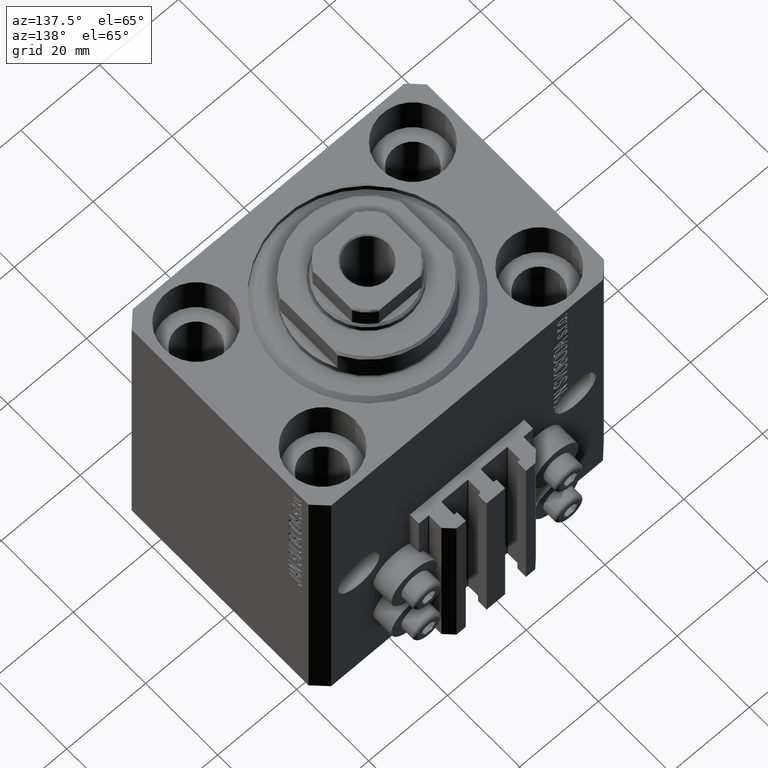
[diagram: clean part render]
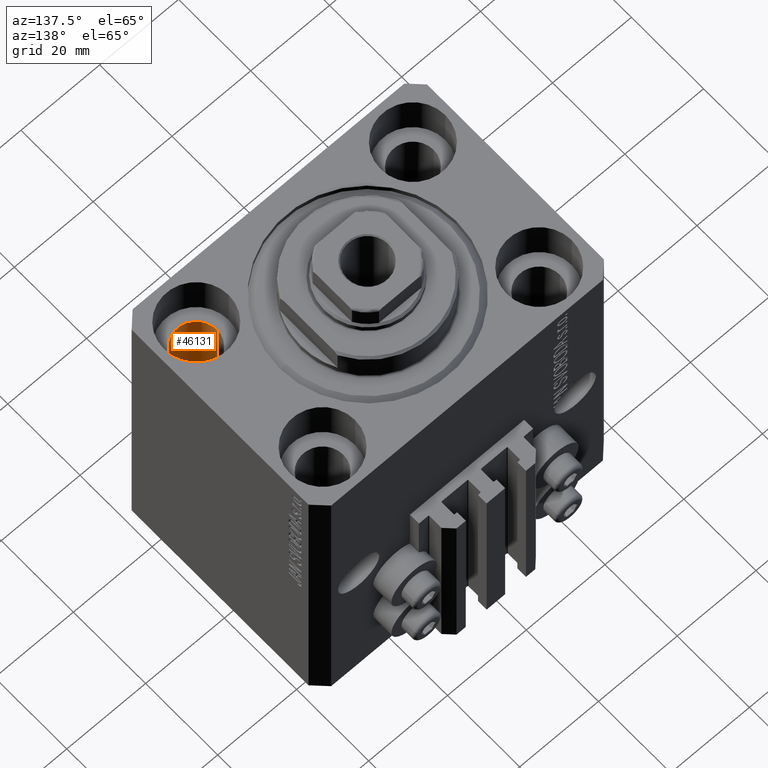
[diagram: same view with one face highlighted and labeled with its STEP entity id]
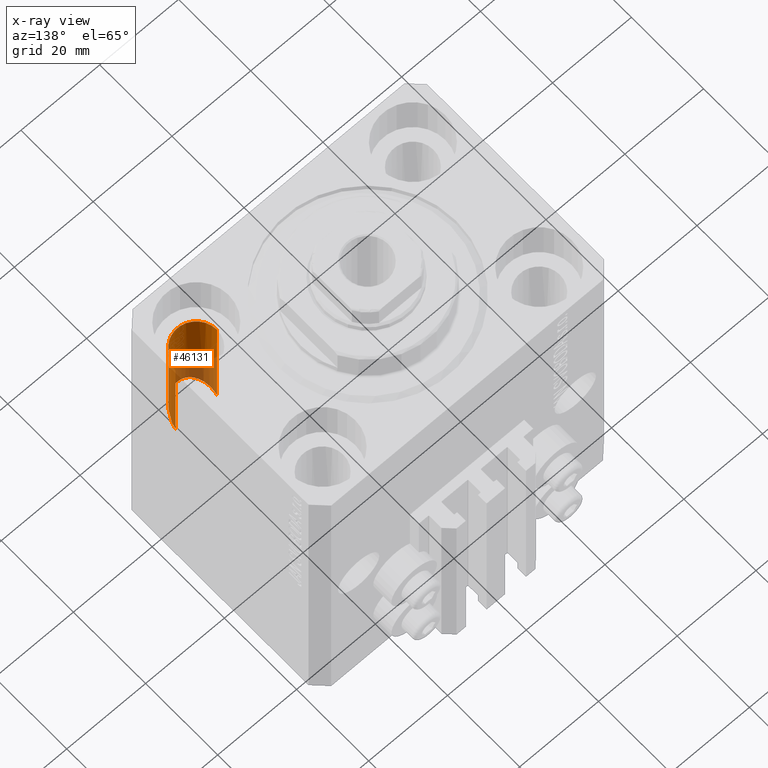
[diagram: x-ray of the same camera — body ghosted, the highlighted face saturated]
A machine part, auxiliary view. The second image highlights one B-rep face of the part: STEP entity #46131.
The next image is the same camera in x-ray: the body ghosted, the highlighted face saturated — about 44% of this face is hidden behind the body in this view.
In plain terms, the highlighted cylindrical surface (edge-blend (fillet) strip) has radius 5.25 mm, axis along (0, 0, 1).
Its self-contained STEP definition (entity closure, byte-faithful):
#450 = CARTESIAN_POINT ( 'NONE',  ( 27.50000000000000355, -17.50000000000000000, -11.00000000000000000 ) ) ;
#575 = CARTESIAN_POINT ( 'NONE',  ( 32.75000000000000000, -17.50000000000000000, -80.00000000000000000 ) ) ;
#930 = EDGE_CURVE ( 'NONE', #45924, #13534, #36344, .T. ) ;
#1744 = VERTEX_POINT ( 'NONE', #27714 ) ;
#5387 = EDGE_LOOP ( 'NONE', ( #22715, #33696, #39802, #12195 ) ) ;
#9265 = EDGE_CURVE ( 'NONE', #43104, #13534, #19038, .T. ) ;
#11812 = CARTESIAN_POINT ( 'NONE',  ( 27.50000000000000355, -17.50000000000000000, -80.00000000000000000 ) ) ;
#12195 = ORIENTED_EDGE ( 'NONE', *, *, #9265, .F. ) ;
#12691 = CARTESIAN_POINT ( 'NONE',  ( 22.25000000000001066, -17.50000000000000000, -40.00000000000000000 ) ) ;
#13534 = VERTEX_POINT ( 'NONE', #42174 ) ;
#13622 = CARTESIAN_POINT ( 'NONE',  ( 22.25000000000001421, -27.99999999999998934, -29.50000000000001421 ) ) ;
#14899 = DIRECTION ( 'NONE',  ( 1.000000000000000000, 0.000000000000000000, 0.000000000000000000 ) ) ;
#15132 = DIRECTION ( 'NONE',  ( 1.000000000000000000, 0.000000000000000000, 0.000000000000000000 ) ) ;
#19038 = LINE ( 'NONE', #575, #29094 ) ;
#21537 = DIRECTION ( 'NONE',  ( 0.000000000000000000, 0.000000000000000000, 1.000000000000000000 ) ) ;
#21993 = AXIS2_PLACEMENT_3D ( 'NONE', #450, #21537, #14899 ) ;
#22715 = ORIENTED_EDGE ( 'NONE', *, *, #41548, .T. ) ;
#26103 = EDGE_CURVE ( 'NONE', #1744, #45924, #43997, .T. ) ;
#27012 =( BOUNDED_CURVE ( )  B_SPLINE_CURVE ( 3, ( #30915, #45118, #13622, #12691 ),
 .UNSPECIFIED., .F., .F. ) 
 B_SPLINE_CURVE_WITH_KNOTS ( ( 4, 4 ),
 ( 4.712388980384689674, 7.853981633974482790 ),
 .UNSPECIFIED. ) 
 CURVE ( )  GEOMETRIC_REPRESENTATION_ITEM ( )  RATIONAL_B_SPLINE_CURVE ( ( 1.000000000000000000, 0.3333333333333333703, 0.3333333333333333703, 1.000000000000000000 ) ) 
 REPRESENTATION_ITEM ( '' )  );
#27714 = CARTESIAN_POINT ( 'NONE',  ( 22.25000000000001066, -17.50000000000000000, -40.00000000000000000 ) ) ;
#29094 = VECTOR ( 'NONE', #44369, 1000.000000000000000 ) ;
#30915 = CARTESIAN_POINT ( 'NONE',  ( 32.75000000000000000, -17.50000000000000000, -40.00000000000000000 ) ) ;
#33585 = CYLINDRICAL_SURFACE ( 'NONE', #36027, 5.249999999999997335 ) ;
#33696 = ORIENTED_EDGE ( 'NONE', *, *, #26103, .T. ) ;
#34062 = VECTOR ( 'NONE', #39738, 1000.000000000000000 ) ;
#36027 = AXIS2_PLACEMENT_3D ( 'NONE', #11812, #44931, #15132 ) ;
#36344 = CIRCLE ( 'NONE', #21993, 5.249999999999997335 ) ;
#39738 = DIRECTION ( 'NONE',  ( -0.000000000000000000, -0.000000000000000000, 1.000000000000000000 ) ) ;
#39802 = ORIENTED_EDGE ( 'NONE', *, *, #930, .T. ) ;
#40685 = FACE_OUTER_BOUND ( 'NONE', #5387, .T. ) ;
#41130 = CARTESIAN_POINT ( 'NONE',  ( 22.25000000000000711, -17.50000000000000000, -11.00000000000000000 ) ) ;
#41548 = EDGE_CURVE ( 'NONE', #43104, #1744, #27012, .T. ) ;
#42174 = CARTESIAN_POINT ( 'NONE',  ( 32.75000000000000000, -17.50000000000000000, -11.00000000000000000 ) ) ;
#43104 = VERTEX_POINT ( 'NONE', #46529 ) ;
#43997 = LINE ( 'NONE', #44226, #34062 ) ;
#44226 = CARTESIAN_POINT ( 'NONE',  ( 22.25000000000000711, -17.50000000000000000, -80.00000000000000000 ) ) ;
#44369 = DIRECTION ( 'NONE',  ( -0.000000000000000000, -0.000000000000000000, 1.000000000000000000 ) ) ;
#44931 = DIRECTION ( 'NONE',  ( -0.000000000000000000, -0.000000000000000000, 1.000000000000000000 ) ) ;
#45118 = CARTESIAN_POINT ( 'NONE',  ( 32.74999999999999289, -27.99999999999998934, -29.50000000000001421 ) ) ;
#45924 = VERTEX_POINT ( 'NONE', #41130 ) ;
#46131 = ADVANCED_FACE ( 'NONE', ( #40685 ), #33585, .F. ) ;
#46529 = CARTESIAN_POINT ( 'NONE',  ( 32.75000000000000000, -17.50000000000000000, -40.00000000000000000 ) ) ;